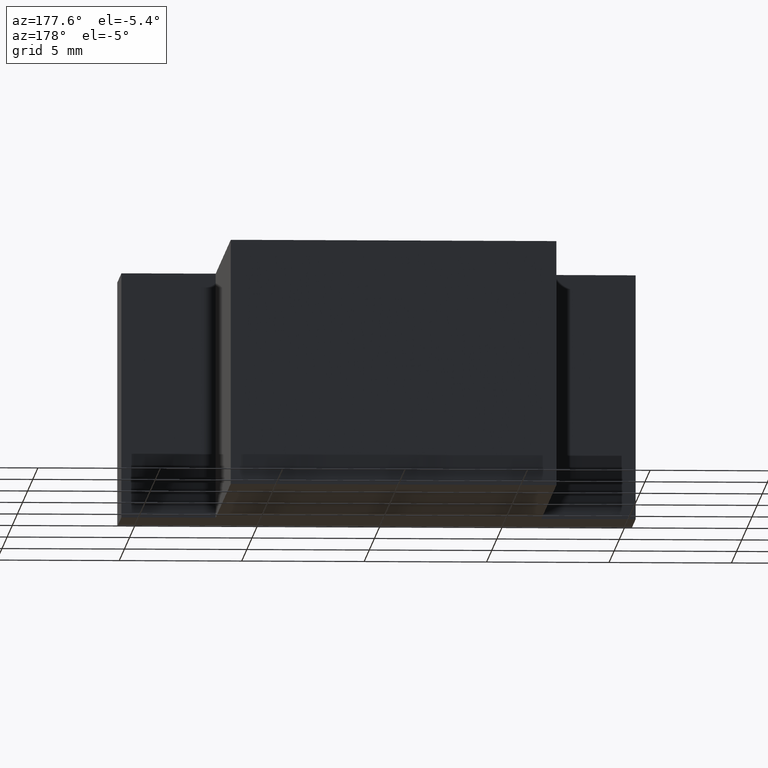
[diagram: clean part render]
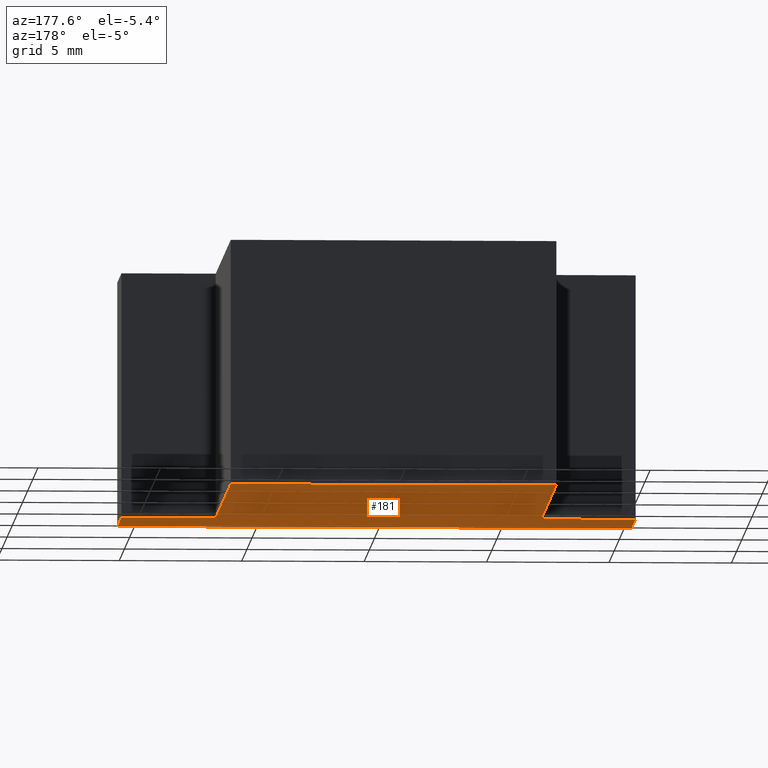
[diagram: same view with one face highlighted and labeled with its STEP entity id]
A machine part, auxiliary view. The second image highlights one B-rep face of the part: STEP entity #181.
In plain terms, the highlighted planar face has unit normal (0, 0, 1).
Its self-contained STEP definition (entity closure, byte-faithful):
#15=FACE_OUTER_BOUND('',#25,.T.);
#25=EDGE_LOOP('',(#123,#124,#125,#126,#127,#128,#129,#130));
#35=LINE('',#274,#59);
#36=LINE('',#276,#60);
#37=LINE('',#278,#61);
#38=LINE('',#280,#62);
#39=LINE('',#282,#63);
#40=LINE('',#284,#64);
#41=LINE('',#286,#65);
#42=LINE('',#287,#66);
#59=VECTOR('',#228,10.);
#60=VECTOR('',#229,10.);
#61=VECTOR('',#230,10.);
#62=VECTOR('',#231,10.);
#63=VECTOR('',#232,10.);
#64=VECTOR('',#233,10.);
#65=VECTOR('',#234,10.);
#66=VECTOR('',#235,10.);
#83=VERTEX_POINT('',#272);
#84=VERTEX_POINT('',#273);
#85=VERTEX_POINT('',#275);
#86=VERTEX_POINT('',#277);
#87=VERTEX_POINT('',#279);
#88=VERTEX_POINT('',#281);
#89=VERTEX_POINT('',#283);
#90=VERTEX_POINT('',#285);
#99=EDGE_CURVE('',#83,#84,#35,.T.);
#100=EDGE_CURVE('',#85,#83,#36,.T.);
#101=EDGE_CURVE('',#86,#85,#37,.T.);
#102=EDGE_CURVE('',#87,#86,#38,.T.);
#103=EDGE_CURVE('',#88,#87,#39,.T.);
#104=EDGE_CURVE('',#89,#88,#40,.T.);
#105=EDGE_CURVE('',#90,#89,#41,.T.);
#106=EDGE_CURVE('',#84,#90,#42,.T.);
#123=ORIENTED_EDGE('',*,*,#99,.F.);
#124=ORIENTED_EDGE('',*,*,#100,.F.);
#125=ORIENTED_EDGE('',*,*,#101,.F.);
#126=ORIENTED_EDGE('',*,*,#102,.F.);
#127=ORIENTED_EDGE('',*,*,#103,.F.);
#128=ORIENTED_EDGE('',*,*,#104,.F.);
#129=ORIENTED_EDGE('',*,*,#105,.F.);
#130=ORIENTED_EDGE('',*,*,#106,.F.);
#171=PLANE('',#214);
#181=ADVANCED_FACE('',(#15),#171,.F.);
#214=AXIS2_PLACEMENT_3D('',#271,#226,#227);
#226=DIRECTION('center_axis',(0.,0.,1.));
#227=DIRECTION('ref_axis',(1.,0.,0.));
#228=DIRECTION('',(0.,1.,0.));
#229=DIRECTION('',(1.,0.,0.));
#230=DIRECTION('',(5.55111512312579E-16,-1.,0.));
#231=DIRECTION('',(-1.,-2.88369616785755E-16,0.));
#232=DIRECTION('',(2.26576127474522E-16,-1.,0.));
#233=DIRECTION('',(-1.,0.,0.));
#234=DIRECTION('',(0.,1.,0.));
#235=DIRECTION('',(-1.,1.44184808392878E-16,0.));
#271=CARTESIAN_POINT('Origin',(-2.77555756156289E-16,7.92443324937028,-5.));
#272=CARTESIAN_POINT('',(10.5,9.80631321065997E-16,-5.));
#273=CARTESIAN_POINT('',(10.5,4.,-5.));
#274=CARTESIAN_POINT('',(10.5,4.,-5.));
#275=CARTESIAN_POINT('',(-10.5,9.80631321065997E-16,-5.));
#276=CARTESIAN_POINT('',(10.5,9.80631321065997E-16,-5.));
#277=CARTESIAN_POINT('',(-10.5,4.,-5.));
#278=CARTESIAN_POINT('',(-10.5,9.80631321065997E-16,-5.));
#279=CARTESIAN_POINT('',(-6.65,4.,-5.));
#280=CARTESIAN_POINT('',(-10.5,4.,-5.));
#281=CARTESIAN_POINT('',(-6.65,18.7,-5.));
#282=CARTESIAN_POINT('',(-6.65,4.,-5.));
#283=CARTESIAN_POINT('',(6.65,18.7,-5.));
#284=CARTESIAN_POINT('',(-6.65,18.7,-5.));
#285=CARTESIAN_POINT('',(6.65,4.,-5.));
#286=CARTESIAN_POINT('',(6.65,18.7,-5.));
#287=CARTESIAN_POINT('',(6.65,4.,-5.));